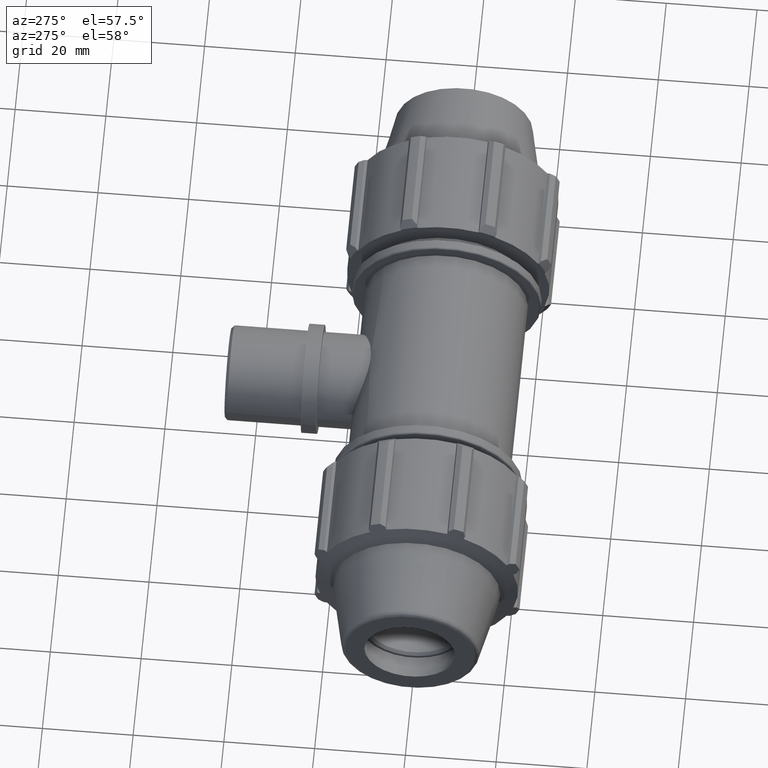
[diagram: clean part render]
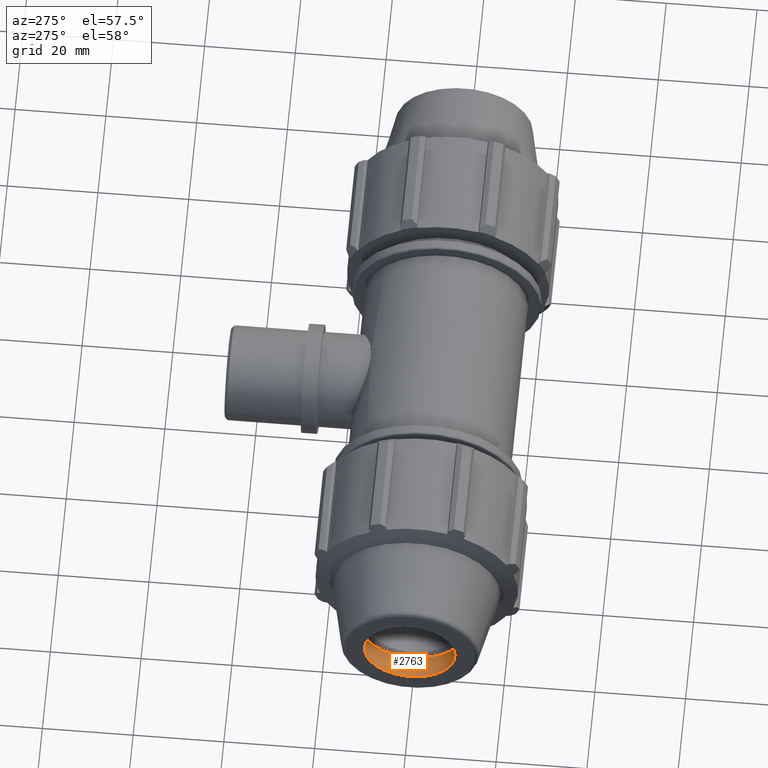
[diagram: same view with one face highlighted and labeled with its STEP entity id]
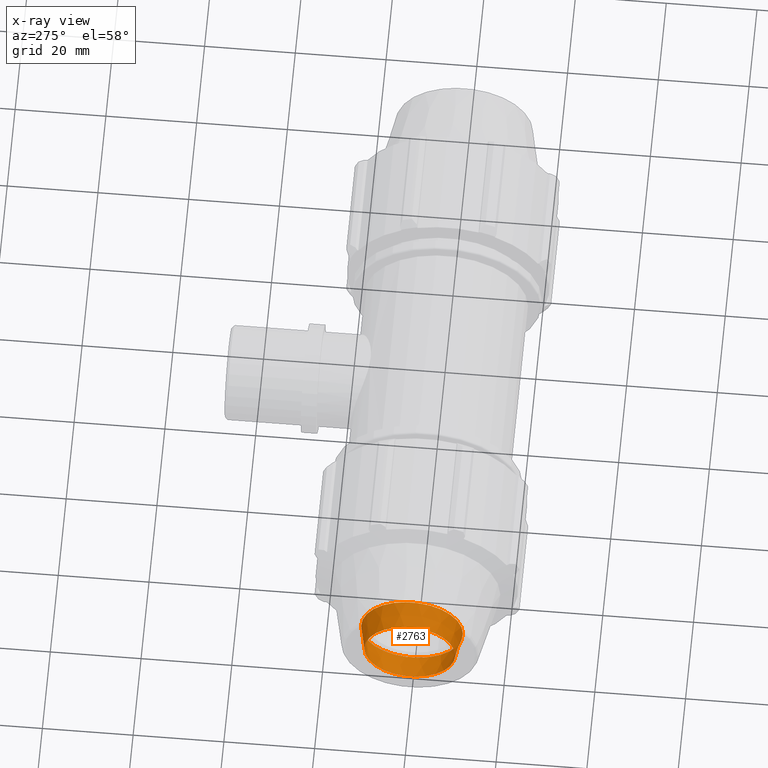
[diagram: x-ray of the same camera — body ghosted, the highlighted face saturated]
A machine part, auxiliary view. The second image highlights one B-rep face of the part: STEP entity #2763.
The next image is the same camera in x-ray: the body ghosted, the highlighted face saturated — about 0% of this face is hidden behind the body in this view.
In plain terms, the highlighted conical surface has half-angle 12 deg.
Its self-contained STEP definition (entity closure, byte-faithful):
#559=CONICAL_SURFACE('',#2982,10.6111001148013,12.);
#595=FACE_BOUND('',#875,.T.);
#697=FACE_OUTER_BOUND('',#874,.T.);
#874=EDGE_LOOP('',(#2111));
#875=EDGE_LOOP('',(#2112));
#1005=CIRCLE('',#2911,11.2222002296026);
#1031=CIRCLE('',#2978,9.99999999999998);
#1190=VERTEX_POINT('',#4249);
#1224=VERTEX_POINT('',#4403);
#1480=EDGE_CURVE('',#1190,#1190,#1005,.T.);
#1545=EDGE_CURVE('',#1224,#1224,#1031,.T.);
#2111=ORIENTED_EDGE('',*,*,#1480,.T.);
#2112=ORIENTED_EDGE('',*,*,#1545,.F.);
#2763=ADVANCED_FACE('',(#697,#595),#559,.F.);
#2911=AXIS2_PLACEMENT_3D('',#4250,#3321,#3322);
#2978=AXIS2_PLACEMENT_3D('',#4404,#3487,#3488);
#2982=AXIS2_PLACEMENT_3D('',#4409,#3495,#3496);
#3321=DIRECTION('center_axis',(1.,-4.01311517903141E-16,0.));
#3322=DIRECTION('ref_axis',(0.,0.,-1.));
#3487=DIRECTION('center_axis',(1.,-4.01311517903141E-16,0.));
#3488=DIRECTION('ref_axis',(0.,0.,-1.));
#3495=DIRECTION('center_axis',(1.,-4.01311517903141E-16,0.));
#3496=DIRECTION('ref_axis',(0.,1.,0.));
#4249=CARTESIAN_POINT('',(-63.25,11.2222002296026,0.));
#4250=CARTESIAN_POINT('Origin',(-63.25,2.53829535073737E-14,0.));
#4403=CARTESIAN_POINT('',(-69.,10.,0.));
#4404=CARTESIAN_POINT('Origin',(-69.,2.76904947353168E-14,0.));
#4409=CARTESIAN_POINT('Origin',(-66.125,2.65367241213452E-14,0.));